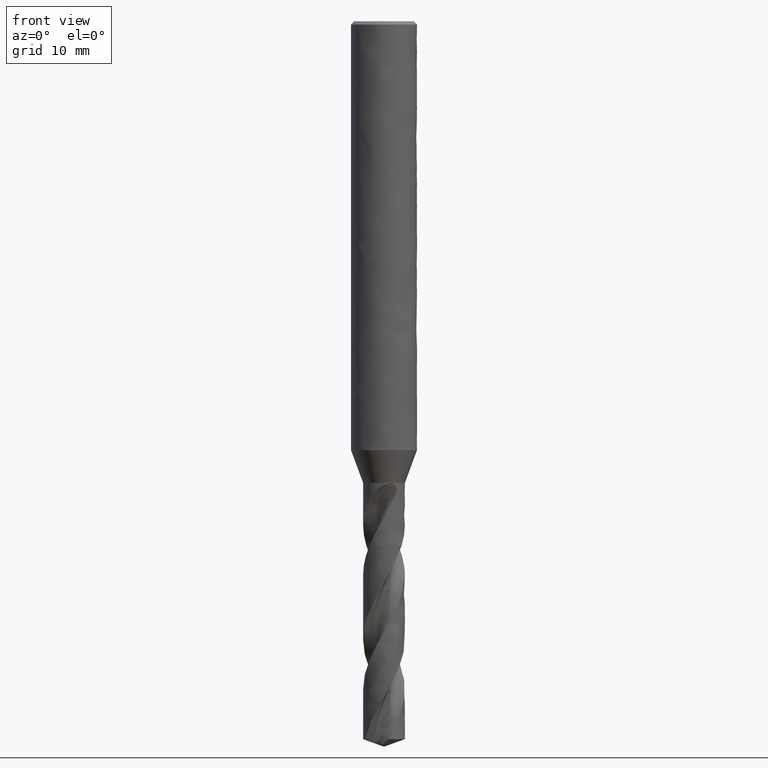
[diagram: clean part render]
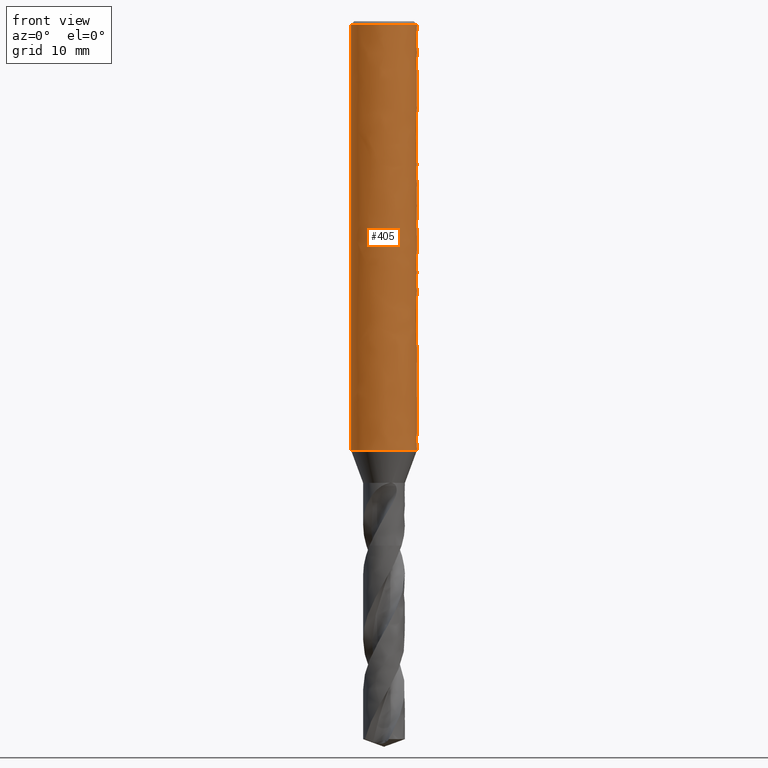
[diagram: same view with one face highlighted and labeled with its STEP entity id]
A machine part, front view. The second image highlights one B-rep face of the part: STEP entity #405.
In plain terms, the highlighted face is a freeform B-spline surface patch.
Its self-contained STEP definition (entity closure, byte-faithful):
#294 = VERTEX_POINT('', #295);
#295 = CARTESIAN_POINT('', (-3., 2.57316662202846E-15, -39.023));
#301 = EDGE_CURVE('', #294, #294, #302, .T.);
#302 = CIRCLE('', #303, 3.);
#303 = AXIS2_PLACEMENT_3D('', #304, #305, #306);
#304 = CARTESIAN_POINT('', (1.46312814997034E-31, 2.38946960215636E-15, -39.023));
#305 = DIRECTION('', (3.74939945665464E-33, 6.12323399573677E-17, -1.));
#306 = DIRECTION('', (-1., 6.12323399573677E-17, 0.));
#354 = VERTEX_POINT('', #355);
#355 = CARTESIAN_POINT('', (-3., 2.02066721859313E-16, -0.299999999999997));
#371 = EDGE_CURVE('', #354, #354, #372, .T.);
#372 = CIRCLE('', #373, 3.);
#373 = AXIS2_PLACEMENT_3D('', #374, #375, #376);
#374 = CARTESIAN_POINT('', (1.12481983699637E-33, 1.836970198721E-17, -0.299999999999997));
#375 = DIRECTION('', (3.74939945665464E-33, 6.12323399573677E-17, -1.));
#376 = DIRECTION('', (-1., 6.12323399573677E-17, 0.));
#405 = ADVANCED_FACE('', (#406, #417), #588, .T.);
#406 = FACE_OUTER_BOUND('', #407, .T.);
#407 = EDGE_LOOP('', (#408, #414, #415, #416));
#408 = ORIENTED_EDGE('', *, *, #409, .T.);
#409 = EDGE_CURVE('', #294, #354, #410, .T.);
#410 = LINE('', #411, #412);
#411 = CARTESIAN_POINT('', (-3., 2.57316662202846E-15, -39.023));
#412 = VECTOR('', #413, 38.723);
#413 = DIRECTION('', (0., -2.37109990016915E-15, 38.723));
#414 = ORIENTED_EDGE('', *, *, #371, .T.);
#415 = ORIENTED_EDGE('', *, *, #409, .F.);
#416 = ORIENTED_EDGE('', *, *, #301, .F.);
#417 = FACE_BOUND('', #418, .T.);
#418 = EDGE_LOOP('', (#419, #429, #507, #515));
#419 = ORIENTED_EDGE('', *, *, #420, .F.);
#420 = EDGE_CURVE('', #421, #423, #425, .T.);
#421 = VERTEX_POINT('', #422);
#422 = CARTESIAN_POINT('', (2.14242852856285, 2.1, -15.9));
#423 = VERTEX_POINT('', #424);
#424 = CARTESIAN_POINT('', (2.14242852856285, 2.1, -20.1));
#425 = LINE('', #426, #427);
#426 = CARTESIAN_POINT('', (2.14242852856285, 2.1, -15.9));
#427 = VECTOR('', #428, 4.2);
#428 = DIRECTION('', (0., 4.44089209850063E-16, -4.2));
#429 = ORIENTED_EDGE('', *, *, #430, .F.);
#430 = EDGE_CURVE('', #431, #421, #433, .T.);
#431 = VERTEX_POINT('', #432);
#432 = CARTESIAN_POINT('', (-2.14242852856285, 2.1, -15.9));
#433 = B_SPLINE_CURVE_WITH_KNOTS('', 3, (#434, #435, #436, #437, #438, #439, #440, #441, #442, #443, #444, #445, #446, #447, #448, #449, #450, #451, #452, #453, #454, #455, #456, #457, #458, #459, #460, #461, #462, #463, #464, #465, #466, #467, #468, #469, #470, #471, #472, #473, #474, #475, #476, #477, #478, #479, #480, #481, #482, #483, #484, #485, #486, #487, #488, #489, #490, #491, #492, #493, #494, #495, #496, #497, #498, #499, #500, #501, #502, #503, #504, #505, #506), .UNSPECIFIED., .F., .U., (4, 3, 3, 3, 3, 3, 3, 3, 3, 3, 3, 3, 3, 3, 3, 3, 3, 3, 3, 3, 3, 3, 3, 3, 4), (0., 0.226532141220109, 0.522486989651017, 0.81871261700037, 1.01613164123478, 1.21365653787485, 1.41130126070876, 1.60907935009336, 1.80700249001341, 2.00507870652318, 2.20331049885992, 2.40169339368014, 2.59896230886553, 2.79623122405092, 2.99461411887114, 3.19284591120788, 3.39092212771765, 3.5888452676377, 3.7866233570223, 3.98426807985621, 4.18179297649629, 4.3792120007307, 4.67543762808005, 4.97139247651095, 5.19792461773105), .UNSPECIFIED.);
#434 = CARTESIAN_POINT('', (-2.14242852856285, 2.1, -15.9));
#435 = CARTESIAN_POINT('', (-2.09966946167759, 2.14362297369035, -15.8556089394693));
#436 = CARTESIAN_POINT('', (-2.05511554936735, 2.1864112283916, -15.8120672951529));
#437 = CARTESIAN_POINT('', (-2.00876778330359, 2.22819478339795, -15.7695480406737));
#438 = CARTESIAN_POINT('', (-1.94821634893922, 2.28278326528933, -15.71399839793));
#439 = CARTESIAN_POINT('', (-1.88451279376244, 2.33573606973675, -15.6601132326456));
#440 = CARTESIAN_POINT('', (-1.81770907332823, 2.38661553768948, -15.6083379099064));
#441 = CARTESIAN_POINT('', (-1.75084423195188, 2.43754155695696, -15.5565152162052));
#442 = CARTESIAN_POINT('', (-1.6807436866328, 2.48648668451198, -15.5067082925553));
#443 = CARTESIAN_POINT('', (-1.607549105666, 2.53294016369761, -15.4594368887067));
#444 = CARTESIAN_POINT('', (-1.5587687118729, 2.56389899941747, -15.4279329486004));
#445 = CARTESIAN_POINT('', (-1.5085561938224, 2.59378846644904, -15.3975172059771));
#446 = CARTESIAN_POINT('', (-1.45698599487321, 2.6224400490275, -15.3683611437249));
#447 = CARTESIAN_POINT('', (-1.40538813971894, 2.65110699695379, -15.3391894455811));
#448 = CARTESIAN_POINT('', (-1.3523713681821, 2.67856731294512, -15.311245625015));
#449 = CARTESIAN_POINT('', (-1.29804490816719, 2.7046403488045, -15.2847135109673));
#450 = CARTESIAN_POINT('', (-1.24368549163368, 2.73072920156951, -15.2581653015195));
#451 = CARTESIAN_POINT('', (-1.18794354651528, 2.75546251726231, -15.2329964966177));
#452 = CARTESIAN_POINT('', (-1.13097137564117, 2.77865142604833, -15.2093992916021));
#453 = CARTESIAN_POINT('', (-1.07396076113038, 2.80185598222798, -15.1857861636831));
#454 = CARTESIAN_POINT('', (-1.01563414958425, 2.82354738172838, -15.1637128351876));
#455 = CARTESIAN_POINT('', (-0.956194799697465, 2.84353503671602, -15.143373249704));
#456 = CARTESIAN_POINT('', (-0.896711856966015, 2.86353735065839, -15.1230187471597));
#457 = CARTESIAN_POINT('', (-0.836016614422417, 2.88186535336629, -15.1043680361057));
#458 = CARTESIAN_POINT('', (-0.774369168024386, 2.89833614192924, -15.087607239896));
#459 = CARTESIAN_POINT('', (-0.712674042608817, 2.91481966923585, -15.0708334806465));
#460 = CARTESIAN_POINT('', (-0.649913305064556, 2.92947198918526, -15.0559231715418));
#461 = CARTESIAN_POINT('', (-0.586405693294019, 2.94212990244693, -15.0430423854271));
#462 = CARTESIAN_POINT('', (-0.522848200475698, 2.95479775766609, -15.030151482303));
#463 = CARTESIAN_POINT('', (-0.458417641638551, 2.96549204170255, -15.0192688998049));
#464 = CARTESIAN_POINT('', (-0.393487032405305, 2.97408270821927, -15.010526974047));
#465 = CARTESIAN_POINT('', (-0.328506929716984, 2.98267992298454, -15.0017783847429));
#466 = CARTESIAN_POINT('', (-0.262890170542835, 2.98918754384691, -14.9951561816426));
#467 = CARTESIAN_POINT('', (-0.197052250671383, 2.99352140638837, -14.9907460110803));
#468 = CARTESIAN_POINT('', (-0.131584030526326, 2.99783093298788, -14.9863606049525));
#469 = CARTESIAN_POINT('', (-0.0657563050617914, 3., -14.9841533463251));
#470 = CARTESIAN_POINT('', (3.42251758381152E-15, 3., -14.9841533463251));
#471 = CARTESIAN_POINT('', (0.0657563050618005, 3., -14.9841533463251));
#472 = CARTESIAN_POINT('', (0.131584030526337, 2.99783093298788, -14.9863606049525));
#473 = CARTESIAN_POINT('', (0.197052250671396, 2.99352140638837, -14.9907460110803));
#474 = CARTESIAN_POINT('', (0.262890170542848, 2.98918754384691, -14.9951561816426));
#475 = CARTESIAN_POINT('', (0.328506929716997, 2.98267992298454, -15.0017783847429));
#476 = CARTESIAN_POINT('', (0.393487032405319, 2.97408270821927, -15.010526974047));
#477 = CARTESIAN_POINT('', (0.458417641638564, 2.96549204170255, -15.0192688998049));
#478 = CARTESIAN_POINT('', (0.52284820047571, 2.95479775766609, -15.030151482303));
#479 = CARTESIAN_POINT('', (0.586405693294031, 2.94212990244693, -15.0430423854271));
#480 = CARTESIAN_POINT('', (0.649913305064567, 2.92947198918525, -15.0559231715418));
#481 = CARTESIAN_POINT('', (0.712674042608828, 2.91481966923584, -15.0708334806465));
#482 = CARTESIAN_POINT('', (0.774369168024397, 2.89833614192924, -15.087607239896));
#483 = CARTESIAN_POINT('', (0.836016614422429, 2.88186535336629, -15.1043680361057));
#484 = CARTESIAN_POINT('', (0.896711856966025, 2.86353735065839, -15.1230187471597));
#485 = CARTESIAN_POINT('', (0.956194799697475, 2.84353503671602, -15.143373249704));
#486 = CARTESIAN_POINT('', (1.01563414958426, 2.82354738172838, -15.1637128351876));
#487 = CARTESIAN_POINT('', (1.07396076113039, 2.80185598222797, -15.1857861636831));
#488 = CARTESIAN_POINT('', (1.13097137564118, 2.77865142604832, -15.2093992916021));
#489 = CARTESIAN_POINT('', (1.18794354651529, 2.75546251726231, -15.2329964966178));
#490 = CARTESIAN_POINT('', (1.24368549163369, 2.7307292015695, -15.2581653015195));
#491 = CARTESIAN_POINT('', (1.2980449081672, 2.70464034880449, -15.2847135109673));
#492 = CARTESIAN_POINT('', (1.35237136818211, 2.67856731294511, -15.311245625015));
#493 = CARTESIAN_POINT('', (1.40538813971895, 2.65110699695378, -15.3391894455812));
#494 = CARTESIAN_POINT('', (1.45698599487322, 2.6224400490275, -15.3683611437249));
#495 = CARTESIAN_POINT('', (1.50855619382241, 2.59378846644903, -15.3975172059771));
#496 = CARTESIAN_POINT('', (1.55876871187291, 2.56389899941746, -15.4279329486004));
#497 = CARTESIAN_POINT('', (1.60754910566602, 2.5329401636976, -15.4594368887067));
#498 = CARTESIAN_POINT('', (1.68074368663281, 2.48648668451198, -15.5067082925553));
#499 = CARTESIAN_POINT('', (1.75084423195189, 2.43754155695695, -15.5565152162052));
#500 = CARTESIAN_POINT('', (1.81770907332824, 2.38661553768947, -15.6083379099064));
#501 = CARTESIAN_POINT('', (1.88451279376245, 2.33573606973674, -15.6601132326456));
#502 = CARTESIAN_POINT('', (1.94821634893923, 2.28278326528932, -15.71399839793));
#503 = CARTESIAN_POINT('', (2.0087677833036, 2.22819478339795, -15.7695480406738));
#504 = CARTESIAN_POINT('', (2.05511554936736, 2.1864112283916, -15.8120672951529));
#505 = CARTESIAN_POINT('', (2.09966946167759, 2.14362297369034, -15.8556089394693));
#506 = CARTESIAN_POINT('', (2.14242852856285, 2.1, -15.9));
#507 = ORIENTED_EDGE('', *, *, #508, .T.);
#508 = EDGE_CURVE('', #431, #509, #511, .T.);
#509 = VERTEX_POINT('', #510);
#510 = CARTESIAN_POINT('', (-2.14242852856285, 2.1, -20.1));
#511 = LINE('', #512, #513);
#512 = CARTESIAN_POINT('', (-2.14242852856285, 2.1, -15.9));
#513 = VECTOR('', #514, 4.2);
#514 = DIRECTION('', (0., -4.44089209850063E-16, -4.2));
#515 = ORIENTED_EDGE('', *, *, #516, .T.);
#516 = EDGE_CURVE('', #509, #423, #517, .T.);
#517 = B_SPLINE_CURVE_WITH_KNOTS('', 3, (#518, #519, #520, #521, #522, #523, #524, #525, #526, #527, #528, #529, #530, #531, #532, #533, #534, #535, #536, #537, #538, #539, #540, #541, #542, #543, #544, #545, #546, #547, #548, #549, #550, #551, #552, #553, #554, #555, #556, #557, #558, #559, #560, #561, #562, #563, #564, #565, #566, #567, #568, #569, #570, #571, #572, #573, #574, #575, #576, #577, #578, #579, #580, #581, #582, #583, #584, #585, #586, #587), .UNSPECIFIED., .F., .U., (4, 3, 3, 3, 3, 3, 3, 3, 3, 3, 3, 3, 3, 3, 3, 3, 3, 3, 3, 3, 3, 3, 3, 4), (0., 0.29566074741977, 0.591176839852678, 0.886518626925897, 1.18164841836716, 1.47652016794506, 1.67307726230278, 1.86952243409268, 2.06584587187348, 2.26204020012184, 2.39294997035299, 2.5987955185311, 2.79606443371649, 2.99444732853671, 3.19267912087345, 3.39075533738322, 3.58867847730327, 3.78645656668786, 3.98410128952178, 4.18162618616185, 4.37904521039626, 4.67527083774561, 4.97122568617652, 5.19775782739663), .UNSPECIFIED.);
#518 = CARTESIAN_POINT('', (-2.14242852856285, 2.1, -20.1));
#519 = CARTESIAN_POINT('', (-2.08662109388193, 2.15693497150777, -20.157937447925));
#520 = CARTESIAN_POINT('', (-2.02774367313634, 2.21245994000831, -20.2144400663657));
#521 = CARTESIAN_POINT('', (-1.96580397010841, 2.26618947820047, -20.269115641651));
#522 = CARTESIAN_POINT('', (-1.90389457170158, 2.31989272867704, -20.3237644663626));
#523 = CARTESIAN_POINT('', (-1.83882161539949, 2.371890809005, -20.3766780973248));
#524 = CARTESIAN_POINT('', (-1.77065397516674, 2.42173171516323, -20.4273965719039));
#525 = CARTESIAN_POINT('', (-1.70252654250763, 2.47154322347377, -20.4780851310158));
#526 = CARTESIAN_POINT('', (-1.63117078258686, 2.51929762113425, -20.5266803591222));
#527 = CARTESIAN_POINT('', (-1.55675381487312, 2.56447217958794, -20.572650323779));
#528 = CARTESIAN_POINT('', (-1.48239026348173, 2.60961431185107, -20.6185872913044));
#529 = CARTESIAN_POINT('', (-1.40478985624159, 2.6522855246488, -20.6620098329141));
#530 = CARTESIAN_POINT('', (-1.32426732289553, 2.69189822569709, -20.7023200103564));
#531 = CARTESIAN_POINT('', (-1.24381519309784, 2.73147629203384, -20.7425949432603));
#532 = CARTESIAN_POINT('', (-1.16021288035591, 2.76811040114363, -20.7798740835253));
#533 = CARTESIAN_POINT('', (-1.07398043712975, 2.80117225829876, -20.8135180737918));
#534 = CARTESIAN_POINT('', (-1.01649918128152, 2.82321079737816, -20.8359446540893));
#535 = CARTESIAN_POINT('', (-0.957748596561566, 2.84370285567261, -20.856797524107));
#536 = CARTESIAN_POINT('', (-0.897945836518627, 2.86246279882885, -20.8758877809545));
#537 = CARTESIAN_POINT('', (-0.838177129067322, 2.88121205979111, -20.8949671675225));
#538 = CARTESIAN_POINT('', (-0.777257254947385, 2.89826163823775, -20.9123169445968));
#539 = CARTESIAN_POINT('', (-0.715458762567486, 2.91343761887321, -20.9277601346871));
#540 = CARTESIAN_POINT('', (-0.653698565749472, 2.92860419519017, -20.9431937548733));
#541 = CARTESIAN_POINT('', (-0.590947680355499, 2.94192632660259, -20.9567504542887));
#542 = CARTESIAN_POINT('', (-0.527533495262697, 2.9532538684265, -20.9682774445929));
#543 = CARTESIAN_POINT('', (-0.464161013676518, 2.96457396084119, -20.9797968543232));
#544 = CARTESIAN_POINT('', (-0.400001379736569, 2.97392352783086, -20.989311042813));
#545 = CARTESIAN_POINT('', (-0.335429955765129, 2.98118881400953, -20.9967042517405));
#546 = CARTESIAN_POINT('', (-0.29234496777863, 2.9860365430586, -21.0016373366599));
#547 = CARTESIAN_POINT('', (-0.249027925527351, 2.98996321515988, -21.0056331472199));
#548 = CARTESIAN_POINT('', (-0.205599414331937, 2.99294652154468, -21.0086689818526));
#549 = CARTESIAN_POINT('', (-0.137311419648319, 2.99763754145158, -21.0134425983904));
#550 = CARTESIAN_POINT('', (-0.0686151827260345, 3., -21.0158466536749));
#551 = CARTESIAN_POINT('', (9.18485099360516E-17, 3., -21.0158466536749));
#552 = CARTESIAN_POINT('', (0.0657563050617961, 3., -21.0158466536749));
#553 = CARTESIAN_POINT('', (0.131584030526332, 2.99783093298788, -21.0136393950475));
#554 = CARTESIAN_POINT('', (0.197052250671389, 2.99352140638837, -21.0092539889197));
#555 = CARTESIAN_POINT('', (0.262890170542842, 2.98918754384691, -21.0048438183574));
#556 = CARTESIAN_POINT('', (0.328506929716991, 2.98267992298454, -20.9982216152571));
#557 = CARTESIAN_POINT('', (0.393487032405312, 2.97408270821927, -20.989473025953));
#558 = CARTESIAN_POINT('', (0.458417641638557, 2.96549204170255, -20.9807311001951));
#559 = CARTESIAN_POINT('', (0.522848200475704, 2.95479775766609, -20.969848517697));
#560 = CARTESIAN_POINT('', (0.586405693294024, 2.94212990244693, -20.9569576145729));
#561 = CARTESIAN_POINT('', (0.649913305064561, 2.92947198918526, -20.9440768284582));
#562 = CARTESIAN_POINT('', (0.712674042608822, 2.91481966923584, -20.9291665193535));
#563 = CARTESIAN_POINT('', (0.774369168024391, 2.89833614192924, -20.912392760104));
#564 = CARTESIAN_POINT('', (0.836016614422422, 2.88186535336629, -20.8956319638943));
#565 = CARTESIAN_POINT('', (0.89671185696602, 2.86353735065839, -20.8769812528403));
#566 = CARTESIAN_POINT('', (0.956194799697469, 2.84353503671602, -20.856626750296));
#567 = CARTESIAN_POINT('', (1.01563414958426, 2.82354738172838, -20.8362871648124));
#568 = CARTESIAN_POINT('', (1.07396076113039, 2.80185598222798, -20.8142138363169));
#569 = CARTESIAN_POINT('', (1.13097137564117, 2.77865142604833, -20.7906007083979));
#570 = CARTESIAN_POINT('', (1.18794354651529, 2.75546251726231, -20.7670035033823));
#571 = CARTESIAN_POINT('', (1.24368549163368, 2.7307292015695, -20.7418346984805));
#572 = CARTESIAN_POINT('', (1.29804490816719, 2.7046403488045, -20.7152864890327));
#573 = CARTESIAN_POINT('', (1.35237136818211, 2.67856731294511, -20.688754374985));
#574 = CARTESIAN_POINT('', (1.40538813971894, 2.65110699695379, -20.6608105544189));
#575 = CARTESIAN_POINT('', (1.45698599487322, 2.6224400490275, -20.6316388562751));
#576 = CARTESIAN_POINT('', (1.5085561938224, 2.59378846644904, -20.6024827940229));
#577 = CARTESIAN_POINT('', (1.5587687118729, 2.56389899941747, -20.5720670513996));
#578 = CARTESIAN_POINT('', (1.60754910566601, 2.53294016369761, -20.5405631112933));
#579 = CARTESIAN_POINT('', (1.6807436866328, 2.48648668451198, -20.4932917074447));
#580 = CARTESIAN_POINT('', (1.75084423195188, 2.43754155695696, -20.4434847837948));
#581 = CARTESIAN_POINT('', (1.81770907332823, 2.38661553768947, -20.3916620900936));
#582 = CARTESIAN_POINT('', (1.88451279376244, 2.33573606973675, -20.3398867673544));
#583 = CARTESIAN_POINT('', (1.94821634893922, 2.28278326528933, -20.28600160207));
#584 = CARTESIAN_POINT('', (2.0087677833036, 2.22819478339795, -20.2304519593263));
#585 = CARTESIAN_POINT('', (2.05511554936735, 2.1864112283916, -20.1879327048471));
#586 = CARTESIAN_POINT('', (2.09966946167759, 2.14362297369035, -20.1443910605307));
#587 = CARTESIAN_POINT('', (2.14242852856285, 2.1, -20.1));
#588 = (
   BOUNDED_SURFACE ()
   B_SPLINE_SURFACE (1, 2, ((#589, #590, #591, #592, #593, #594, #595, #596, #597), (#598, #599, #600, #601, #602, #603, #604, #605, #606)), .UNSPECIFIED., .F., .T., .U.)
   B_SPLINE_SURFACE_WITH_KNOTS ((2, 2), (3, 2, 2, 2, 3), (0., 1.), (0., 4.71238898038469, 9.42477796076938, 14.1371669411541, 18.8495559215388), .UNSPECIFIED.)
   GEOMETRIC_REPRESENTATION_ITEM ()
   RATIONAL_B_SPLINE_SURFACE (((1., 0.707106781186548, 1., 0.707106781186548, 1., 0.707106781186548, 1., 0.707106781186548, 1.), (1., 0.707106781186548, 1., 0.707106781186548, 1., 0.707106781186548, 1., 0.707106781186548, 1.)))
   REPRESENTATION_ITEM ('')
   SURFACE ()
);
#589 = CARTESIAN_POINT('', (-3., 2.57316662202846E-15, -39.023));
#590 = CARTESIAN_POINT('', (-3., 3., -39.023));
#591 = CARTESIAN_POINT('', (1.23259516440783E-31, 3., -39.023));
#592 = CARTESIAN_POINT('', (3., 3., -39.023));
#593 = CARTESIAN_POINT('', (3., 2.57316662202846E-15, -39.023));
#594 = CARTESIAN_POINT('', (3., -3., -39.023));
#595 = CARTESIAN_POINT('', (3.67394039744206E-16, -3., -39.023));
#596 = CARTESIAN_POINT('', (-3., -3., -39.023));
#597 = CARTESIAN_POINT('', (-3., 2.57316662202846E-15, -39.023));
#598 = CARTESIAN_POINT('', (-3., 2.02066721859313E-16, -0.299999999999997));
#599 = CARTESIAN_POINT('', (-3., 3., -0.299999999999997));
#600 = CARTESIAN_POINT('', (0., 3., -0.299999999999997));
#601 = CARTESIAN_POINT('', (3., 3., -0.299999999999997));
#602 = CARTESIAN_POINT('', (3., 2.02066721859313E-16, -0.299999999999997));
#603 = CARTESIAN_POINT('', (3., -3., -0.299999999999997));
#604 = CARTESIAN_POINT('', (3.67394039744206E-16, -3., -0.299999999999997));
#605 = CARTESIAN_POINT('', (-3., -3., -0.299999999999997));
#606 = CARTESIAN_POINT('', (-3., 2.02066721859313E-16, -0.299999999999997));